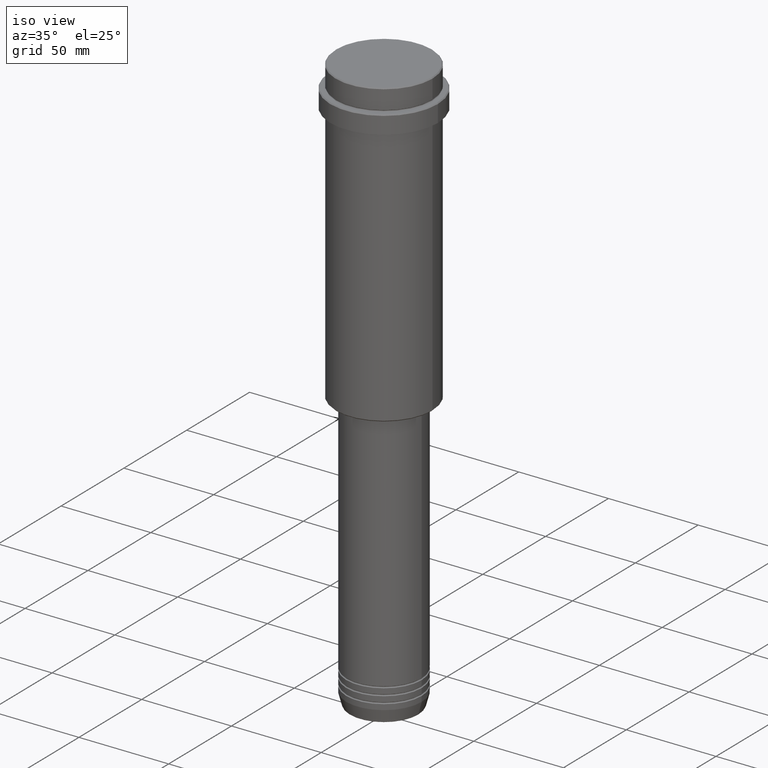
[diagram: clean part render]
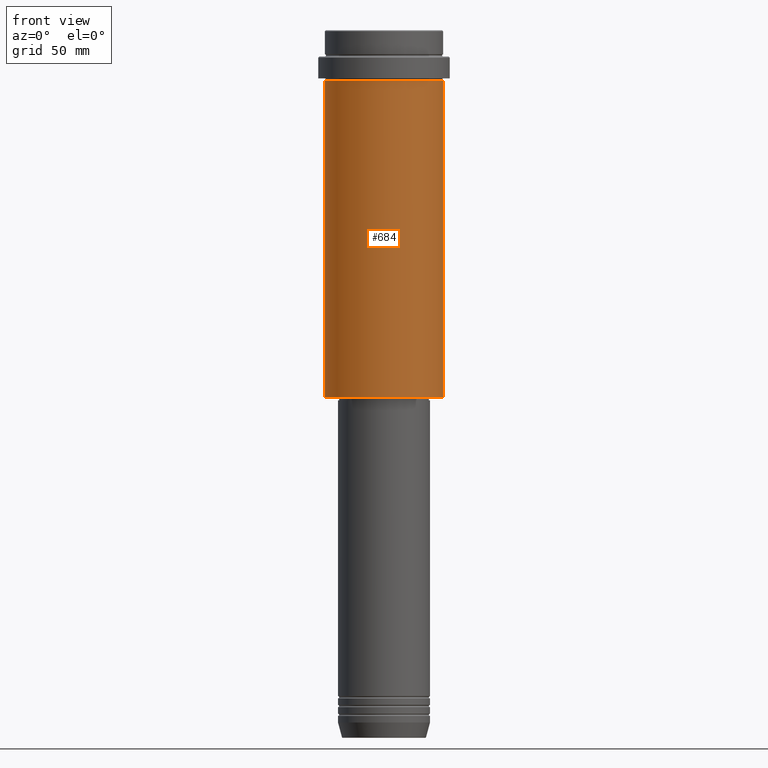
[diagram: tour spotlight — one face highlighted and labeled with its STEP entity id]
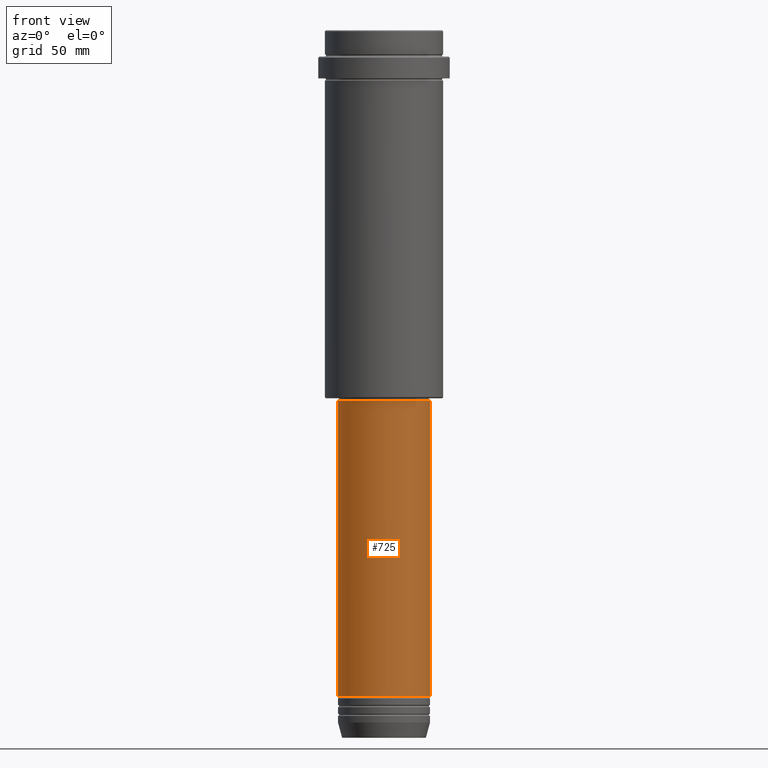
[diagram: tour spotlight — one face highlighted and labeled with its STEP entity id]
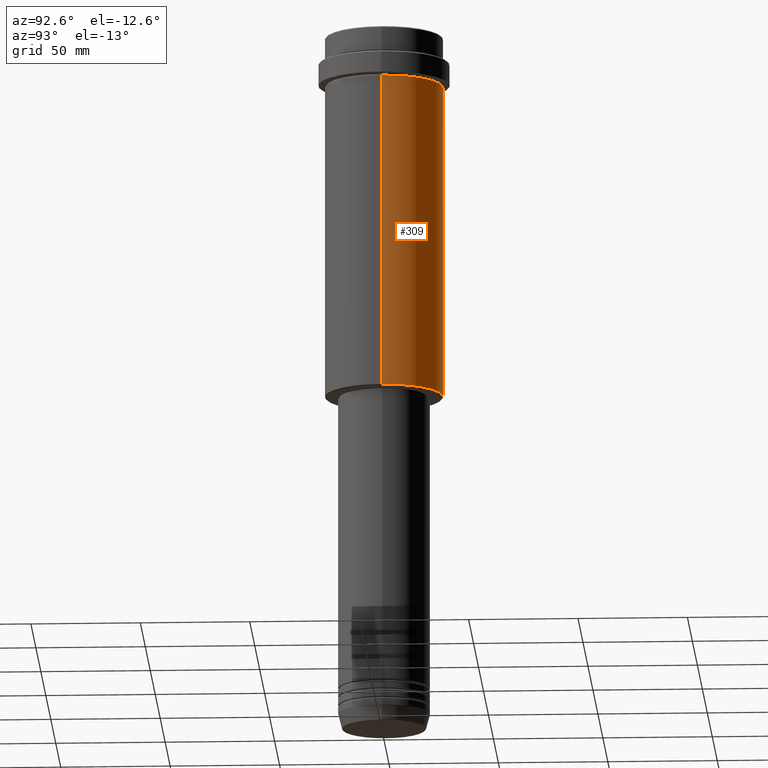
[diagram: tour spotlight — one face highlighted and labeled with its STEP entity id]
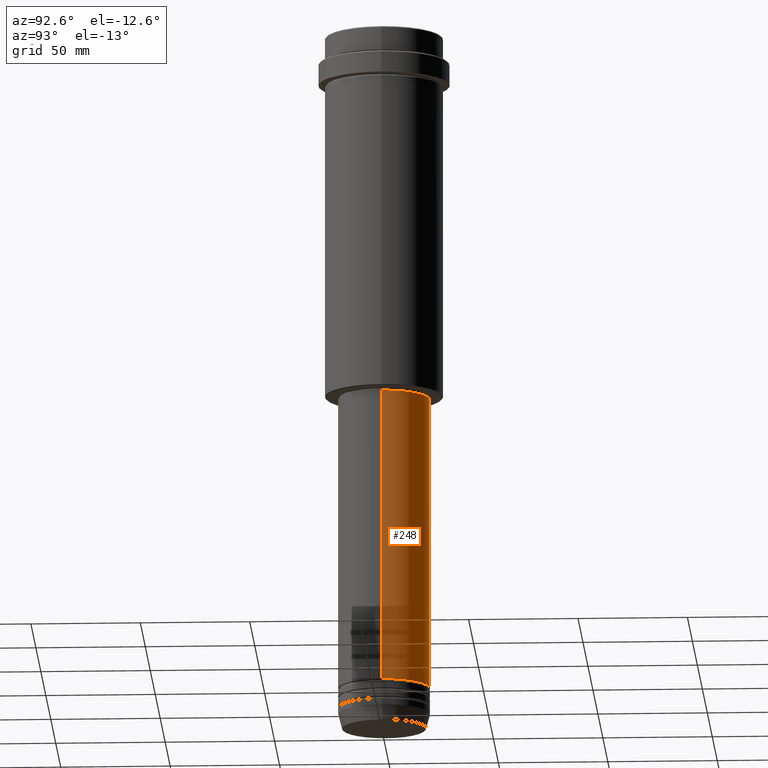
[diagram: tour spotlight — one face highlighted and labeled with its STEP entity id]
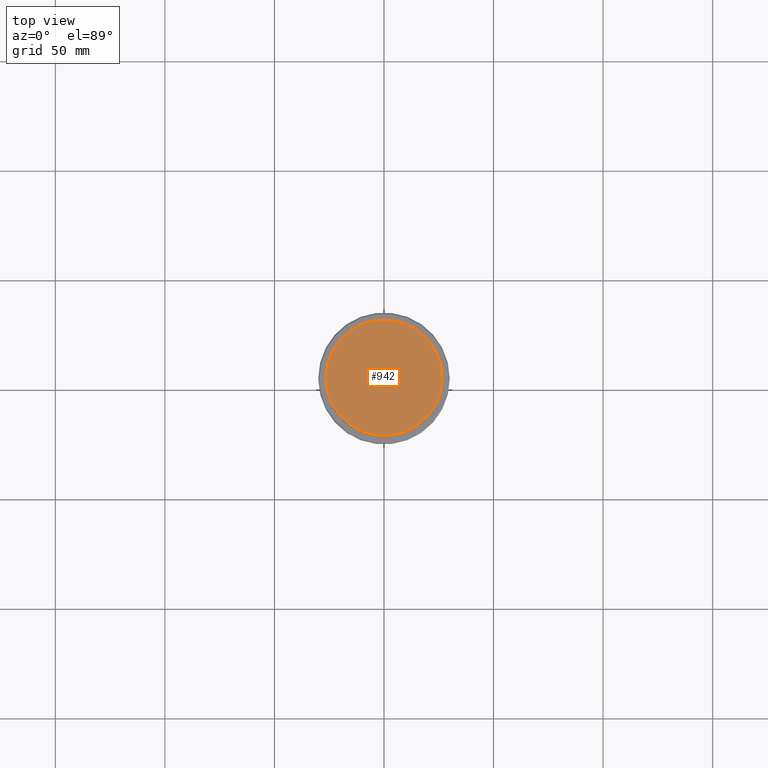
[diagram: tour spotlight — one face highlighted and labeled with its STEP entity id]
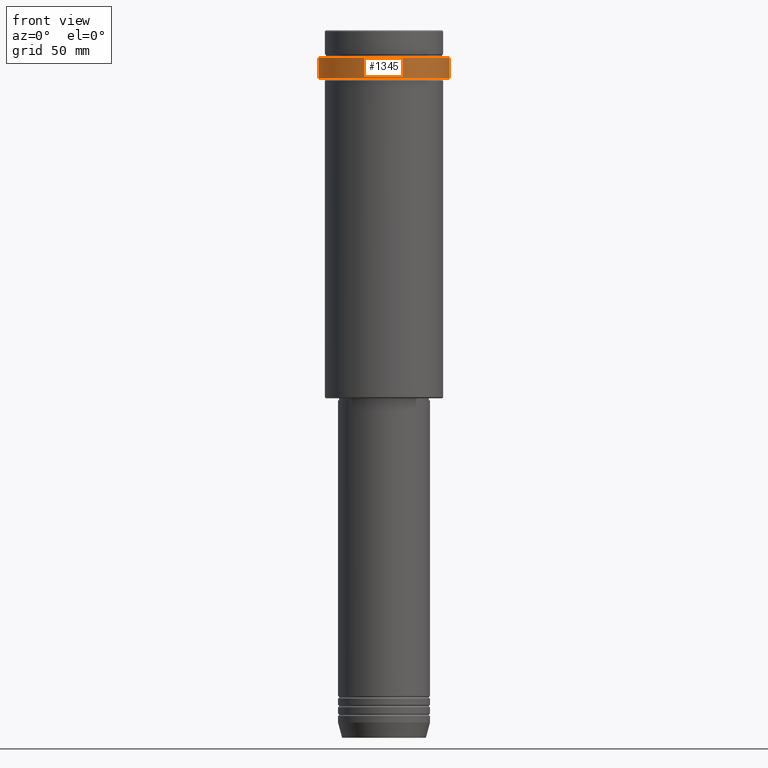
[diagram: tour spotlight — one face highlighted and labeled with its STEP entity id]
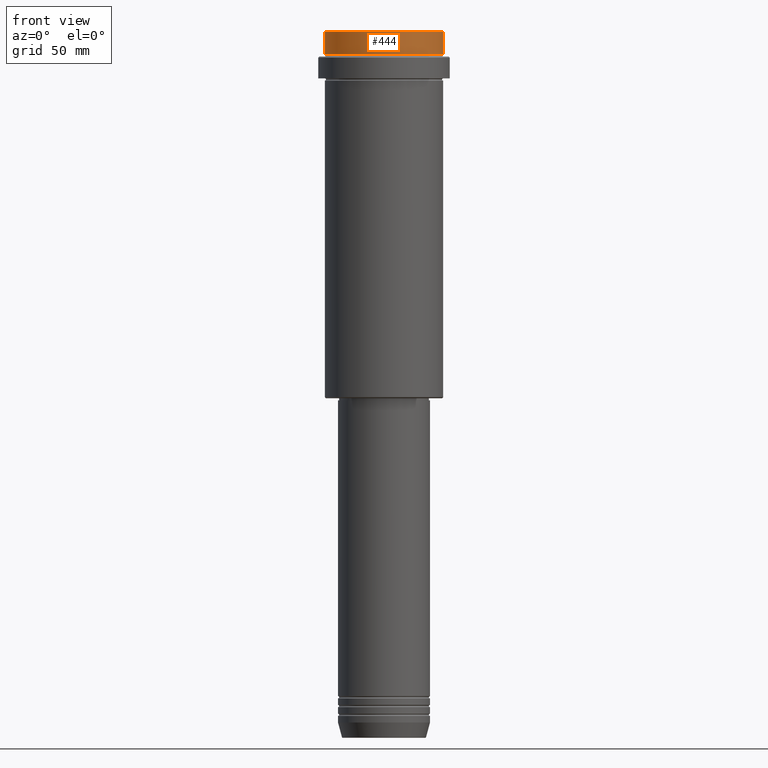
[diagram: tour spotlight — one face highlighted and labeled with its STEP entity id]
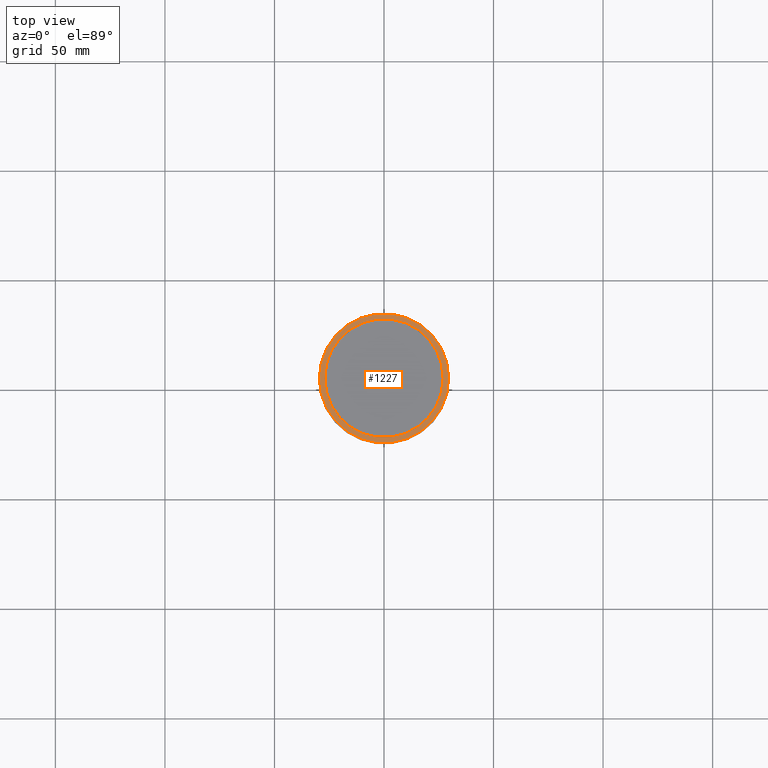
[diagram: tour spotlight — one face highlighted and labeled with its STEP entity id]
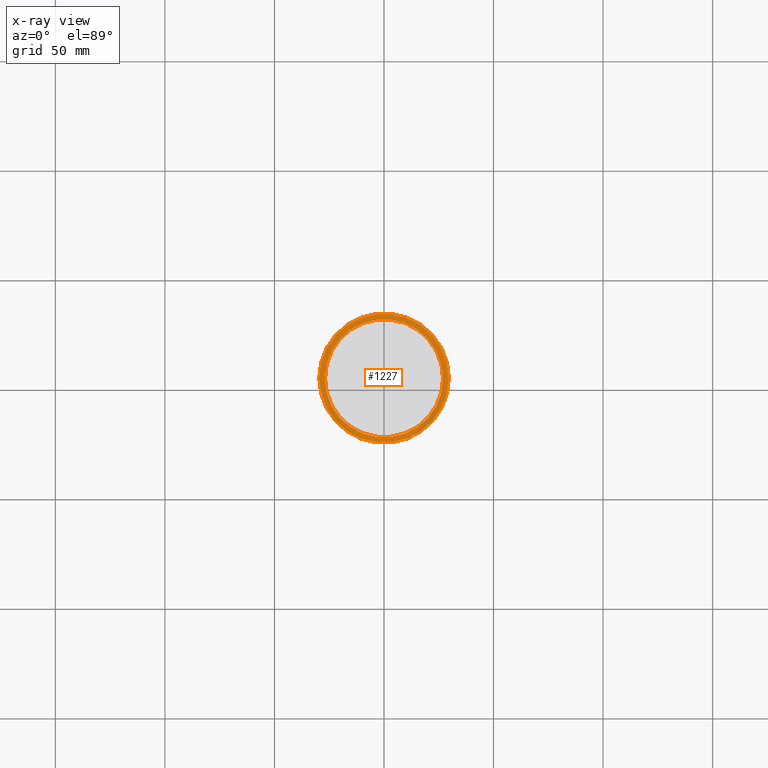
[diagram: x-ray of the same camera — body ghosted, this tour face saturated]
A machine part: a face-by-face anatomy tour. The part has 52 B-rep faces; the first image is the clean iso view, then the 8 largest visible faces are spotlighted one at a time (largest first), each with its STEP entity span.

Face 1 — front view, entity #684. In plain terms, the highlighted cylindrical surface (partial cylindrical patch) has radius 27 mm, axis along (-0, -0, 1).
Definition (entity closure, byte-faithful):
#84 = EDGE_CURVE ( 'NONE', #395, #1285, #538, .T. ) ;
#170 = CARTESIAN_POINT ( 'NONE',  ( 26.99999999999999645, 0.000000000000000000, 0.000000000000000000 ) ) ;
#187 = LINE ( 'NONE', #535, #859 ) ;
#193 = EDGE_LOOP ( 'NONE', ( #1368, #1355, #1031, #651 ) ) ;
#265 = DIRECTION ( 'NONE',  ( -0.000000000000000000, -0.000000000000000000, 1.000000000000000000 ) ) ;
#268 = CARTESIAN_POINT ( 'NONE',  ( 0.000000000000000000, 0.000000000000000000, 0.000000000000000000 ) ) ;
#395 = VERTEX_POINT ( 'NONE', #418 ) ;
#413 = CARTESIAN_POINT ( 'NONE',  ( -26.99999999999999645, 3.306546357697853339E-15, -23.00000000000000000 ) ) ;
#418 = CARTESIAN_POINT ( 'NONE',  ( 26.99999999999999645, 0.000000000000000000, -167.5000000000000284 ) ) ;
#460 = VERTEX_POINT ( 'NONE', #413 ) ;
#469 = VERTEX_POINT ( 'NONE', #682 ) ;
#489 = DIRECTION ( 'NONE',  ( -0.000000000000000000, -0.000000000000000000, 1.000000000000000000 ) ) ;
#490 = FACE_OUTER_BOUND ( 'NONE', #193, .T. ) ;
#506 = CIRCLE ( 'NONE', #1389, 26.99999999999999645 ) ;
#535 = CARTESIAN_POINT ( 'NONE',  ( -26.99999999999999645, 3.306546357697853339E-15, 0.000000000000000000 ) ) ;
#538 = LINE ( 'NONE', #170, #1222 ) ;
#600 = EDGE_CURVE ( 'NONE', #460, #1285, #905, .T. ) ;
#623 = DIRECTION ( 'NONE',  ( -0.000000000000000000, -0.000000000000000000, 1.000000000000000000 ) ) ;
#651 = ORIENTED_EDGE ( 'NONE', *, *, #600, .F. ) ;
#682 = CARTESIAN_POINT ( 'NONE',  ( -26.99999999999999645, 3.306546357697853339E-15, -167.5000000000000284 ) ) ;
#684 = ADVANCED_FACE ( 'NONE', ( #490 ), #1370, .T. ) ;
#771 = AXIS2_PLACEMENT_3D ( 'NONE', #268, #812, #1030 ) ;
#803 = DIRECTION ( 'NONE',  ( -1.000000000000000000, 0.000000000000000000, 0.000000000000000000 ) ) ;
#812 = DIRECTION ( 'NONE',  ( -0.000000000000000000, -0.000000000000000000, 1.000000000000000000 ) ) ;
#820 = CARTESIAN_POINT ( 'NONE',  ( 0.000000000000000000, 0.000000000000000000, -167.5000000000000284 ) ) ;
#859 = VECTOR ( 'NONE', #1376, 1000.000000000000000 ) ;
#905 = CIRCLE ( 'NONE', #980, 26.99999999999999645 ) ;
#926 = DIRECTION ( 'NONE',  ( 1.000000000000000000, 0.000000000000000000, 0.000000000000000000 ) ) ;
#980 = AXIS2_PLACEMENT_3D ( 'NONE', #1150, #265, #926 ) ;
#1030 = DIRECTION ( 'NONE',  ( 1.000000000000000000, 0.000000000000000000, 0.000000000000000000 ) ) ;
#1031 = ORIENTED_EDGE ( 'NONE', *, *, #84, .T. ) ;
#1041 = CARTESIAN_POINT ( 'NONE',  ( 26.99999999999999645, 0.000000000000000000, -23.00000000000000000 ) ) ;
#1150 = CARTESIAN_POINT ( 'NONE',  ( 0.000000000000000000, 0.000000000000000000, -23.00000000000000000 ) ) ;
#1222 = VECTOR ( 'NONE', #623, 1000.000000000000000 ) ;
#1271 = EDGE_CURVE ( 'NONE', #469, #395, #506, .T. ) ;
#1285 = VERTEX_POINT ( 'NONE', #1041 ) ;
#1355 = ORIENTED_EDGE ( 'NONE', *, *, #1271, .T. ) ;
#1368 = ORIENTED_EDGE ( 'NONE', *, *, #1372, .F. ) ;
#1370 = CYLINDRICAL_SURFACE ( 'NONE', #771, 26.99999999999999645 ) ;
#1372 = EDGE_CURVE ( 'NONE', #469, #460, #187, .T. ) ;
#1376 = DIRECTION ( 'NONE',  ( -0.000000000000000000, -0.000000000000000000, 1.000000000000000000 ) ) ;
#1389 = AXIS2_PLACEMENT_3D ( 'NONE', #820, #489, #803 ) ;

Face 2 — front view, entity #725. In plain terms, the highlighted cylindrical surface (partial cylindrical patch) has radius 21 mm, axis along (-0, -0, 1).
Definition (entity closure, byte-faithful):
#28 = CARTESIAN_POINT ( 'NONE',  ( -20.99999999999999645, 2.571758278209441267E-15, 0.000000000000000000 ) ) ;
#51 = CARTESIAN_POINT ( 'NONE',  ( 0.000000000000000000, 0.000000000000000000, 0.000000000000000000 ) ) ;
#100 = DIRECTION ( 'NONE',  ( 1.000000000000000000, 0.000000000000000000, 0.000000000000000000 ) ) ;
#128 = CIRCLE ( 'NONE', #1362, 20.99999999999999645 ) ;
#135 = CARTESIAN_POINT ( 'NONE',  ( 20.99999999999999645, 0.000000000000000000, -168.9999999999999147 ) ) ;
#175 = AXIS2_PLACEMENT_3D ( 'NONE', #51, #1354, #374 ) ;
#251 = ORIENTED_EDGE ( 'NONE', *, *, #784, .F. ) ;
#257 = CYLINDRICAL_SURFACE ( 'NONE', #175, 20.99999999999999645 ) ;
#274 = VERTEX_POINT ( 'NONE', #674 ) ;
#297 = ORIENTED_EDGE ( 'NONE', *, *, #899, .F. ) ;
#331 = VECTOR ( 'NONE', #915, 1000.000000000000000 ) ;
#359 = EDGE_CURVE ( 'NONE', #1179, #274, #770, .T. ) ;
#374 = DIRECTION ( 'NONE',  ( 1.000000000000000000, 0.000000000000000000, 0.000000000000000000 ) ) ;
#436 = VECTOR ( 'NONE', #596, 1000.000000000000000 ) ;
#466 = EDGE_LOOP ( 'NONE', ( #297, #1156, #1037, #251 ) ) ;
#582 = DIRECTION ( 'NONE',  ( -0.000000000000000000, -0.000000000000000000, 1.000000000000000000 ) ) ;
#596 = DIRECTION ( 'NONE',  ( -0.000000000000000000, -0.000000000000000000, 1.000000000000000000 ) ) ;
#674 = CARTESIAN_POINT ( 'NONE',  ( 21.00000000000000000, 0.000000000000000000, -303.9999999999998863 ) ) ;
#716 = EDGE_CURVE ( 'NONE', #274, #787, #804, .T. ) ;
#718 = CARTESIAN_POINT ( 'NONE',  ( 20.99999999999999645, 0.000000000000000000, 0.000000000000000000 ) ) ;
#725 = ADVANCED_FACE ( 'NONE', ( #1242 ), #257, .T. ) ;
#770 = CIRCLE ( 'NONE', #1133, 21.00000000000000000 ) ;
#784 = EDGE_CURVE ( 'NONE', #900, #787, #128, .T. ) ;
#787 = VERTEX_POINT ( 'NONE', #135 ) ;
#804 = LINE ( 'NONE', #718, #436 ) ;
#862 = CARTESIAN_POINT ( 'NONE',  ( 0.000000000000000000, 0.000000000000000000, -303.9999999999998863 ) ) ;
#894 = CARTESIAN_POINT ( 'NONE',  ( 0.000000000000000000, 0.000000000000000000, -168.9999999999999147 ) ) ;
#899 = EDGE_CURVE ( 'NONE', #1179, #900, #1124, .T. ) ;
#900 = VERTEX_POINT ( 'NONE', #1346 ) ;
#915 = DIRECTION ( 'NONE',  ( -0.000000000000000000, -0.000000000000000000, 1.000000000000000000 ) ) ;
#939 = CARTESIAN_POINT ( 'NONE',  ( -21.00000000000000000, 2.571758278209441661E-15, -303.9999999999998863 ) ) ;
#1037 = ORIENTED_EDGE ( 'NONE', *, *, #716, .T. ) ;
#1124 = LINE ( 'NONE', #28, #331 ) ;
#1133 = AXIS2_PLACEMENT_3D ( 'NONE', #862, #1284, #100 ) ;
#1156 = ORIENTED_EDGE ( 'NONE', *, *, #359, .T. ) ;
#1179 = VERTEX_POINT ( 'NONE', #939 ) ;
#1242 = FACE_OUTER_BOUND ( 'NONE', #466, .T. ) ;
#1284 = DIRECTION ( 'NONE',  ( -0.000000000000000000, -0.000000000000000000, 1.000000000000000000 ) ) ;
#1317 = DIRECTION ( 'NONE',  ( 1.000000000000000000, 0.000000000000000000, 0.000000000000000000 ) ) ;
#1346 = CARTESIAN_POINT ( 'NONE',  ( -20.99999999999999645, 2.571758278209441267E-15, -168.9999999999999147 ) ) ;
#1354 = DIRECTION ( 'NONE',  ( -0.000000000000000000, -0.000000000000000000, 1.000000000000000000 ) ) ;
#1362 = AXIS2_PLACEMENT_3D ( 'NONE', #894, #582, #1317 ) ;

Face 3 — auxiliary view, entity #309. In plain terms, the highlighted cylindrical surface (partial cylindrical patch) has radius 27 mm, axis along (-0, -0, 1).
Definition (entity closure, byte-faithful):
#42 = DIRECTION ( 'NONE',  ( -0.000000000000000000, -0.000000000000000000, 1.000000000000000000 ) ) ;
#84 = EDGE_CURVE ( 'NONE', #395, #1285, #538, .T. ) ;
#91 = AXIS2_PLACEMENT_3D ( 'NONE', #138, #42, #842 ) ;
#138 = CARTESIAN_POINT ( 'NONE',  ( 0.000000000000000000, 0.000000000000000000, -167.5000000000000284 ) ) ;
#145 = FACE_OUTER_BOUND ( 'NONE', #707, .T. ) ;
#170 = CARTESIAN_POINT ( 'NONE',  ( 26.99999999999999645, 0.000000000000000000, 0.000000000000000000 ) ) ;
#187 = LINE ( 'NONE', #535, #859 ) ;
#253 = DIRECTION ( 'NONE',  ( -0.000000000000000000, -0.000000000000000000, 1.000000000000000000 ) ) ;
#262 = CIRCLE ( 'NONE', #330, 26.99999999999999645 ) ;
#309 = ADVANCED_FACE ( 'NONE', ( #145 ), #581, .T. ) ;
#330 = AXIS2_PLACEMENT_3D ( 'NONE', #519, #253, #696 ) ;
#364 = CARTESIAN_POINT ( 'NONE',  ( 0.000000000000000000, 0.000000000000000000, 0.000000000000000000 ) ) ;
#395 = VERTEX_POINT ( 'NONE', #418 ) ;
#413 = CARTESIAN_POINT ( 'NONE',  ( -26.99999999999999645, 3.306546357697853339E-15, -23.00000000000000000 ) ) ;
#418 = CARTESIAN_POINT ( 'NONE',  ( 26.99999999999999645, 0.000000000000000000, -167.5000000000000284 ) ) ;
#460 = VERTEX_POINT ( 'NONE', #413 ) ;
#469 = VERTEX_POINT ( 'NONE', #682 ) ;
#482 = DIRECTION ( 'NONE',  ( -0.000000000000000000, -0.000000000000000000, 1.000000000000000000 ) ) ;
#519 = CARTESIAN_POINT ( 'NONE',  ( 0.000000000000000000, 0.000000000000000000, -23.00000000000000000 ) ) ;
#528 = ORIENTED_EDGE ( 'NONE', *, *, #1151, .T. ) ;
#532 = EDGE_CURVE ( 'NONE', #1285, #460, #262, .T. ) ;
#535 = CARTESIAN_POINT ( 'NONE',  ( -26.99999999999999645, 3.306546357697853339E-15, 0.000000000000000000 ) ) ;
#538 = LINE ( 'NONE', #170, #1222 ) ;
#581 = CYLINDRICAL_SURFACE ( 'NONE', #1075, 26.99999999999999645 ) ;
#623 = DIRECTION ( 'NONE',  ( -0.000000000000000000, -0.000000000000000000, 1.000000000000000000 ) ) ;
#640 = CIRCLE ( 'NONE', #91, 26.99999999999999645 ) ;
#682 = CARTESIAN_POINT ( 'NONE',  ( -26.99999999999999645, 3.306546357697853339E-15, -167.5000000000000284 ) ) ;
#696 = DIRECTION ( 'NONE',  ( 1.000000000000000000, 0.000000000000000000, 0.000000000000000000 ) ) ;
#707 = EDGE_LOOP ( 'NONE', ( #528, #925, #1130, #1254 ) ) ;
#801 = DIRECTION ( 'NONE',  ( 1.000000000000000000, 0.000000000000000000, 0.000000000000000000 ) ) ;
#842 = DIRECTION ( 'NONE',  ( -1.000000000000000000, 0.000000000000000000, 0.000000000000000000 ) ) ;
#859 = VECTOR ( 'NONE', #1376, 1000.000000000000000 ) ;
#925 = ORIENTED_EDGE ( 'NONE', *, *, #1372, .T. ) ;
#1041 = CARTESIAN_POINT ( 'NONE',  ( 26.99999999999999645, 0.000000000000000000, -23.00000000000000000 ) ) ;
#1075 = AXIS2_PLACEMENT_3D ( 'NONE', #364, #482, #801 ) ;
#1130 = ORIENTED_EDGE ( 'NONE', *, *, #532, .F. ) ;
#1151 = EDGE_CURVE ( 'NONE', #395, #469, #640, .T. ) ;
#1222 = VECTOR ( 'NONE', #623, 1000.000000000000000 ) ;
#1254 = ORIENTED_EDGE ( 'NONE', *, *, #84, .F. ) ;
#1285 = VERTEX_POINT ( 'NONE', #1041 ) ;
#1372 = EDGE_CURVE ( 'NONE', #469, #460, #187, .T. ) ;
#1376 = DIRECTION ( 'NONE',  ( -0.000000000000000000, -0.000000000000000000, 1.000000000000000000 ) ) ;

Face 4 — auxiliary view, entity #248. In plain terms, the highlighted cylindrical surface (partial cylindrical patch) has radius 21 mm, axis along (-0, -0, 1).
Definition (entity closure, byte-faithful):
#1 = DIRECTION ( 'NONE',  ( -0.000000000000000000, -0.000000000000000000, 1.000000000000000000 ) ) ;
#22 = EDGE_LOOP ( 'NONE', ( #814, #1210, #238, #1406 ) ) ;
#28 = CARTESIAN_POINT ( 'NONE',  ( -20.99999999999999645, 2.571758278209441267E-15, 0.000000000000000000 ) ) ;
#120 = DIRECTION ( 'NONE',  ( 1.000000000000000000, 0.000000000000000000, 0.000000000000000000 ) ) ;
#135 = CARTESIAN_POINT ( 'NONE',  ( 20.99999999999999645, 0.000000000000000000, -168.9999999999999147 ) ) ;
#215 = EDGE_CURVE ( 'NONE', #787, #900, #1310, .T. ) ;
#238 = ORIENTED_EDGE ( 'NONE', *, *, #215, .F. ) ;
#248 = ADVANCED_FACE ( 'NONE', ( #1170 ), #316, .T. ) ;
#274 = VERTEX_POINT ( 'NONE', #674 ) ;
#316 = CYLINDRICAL_SURFACE ( 'NONE', #955, 20.99999999999999645 ) ;
#322 = DIRECTION ( 'NONE',  ( 1.000000000000000000, 0.000000000000000000, 0.000000000000000000 ) ) ;
#325 = AXIS2_PLACEMENT_3D ( 'NONE', #761, #970, #322 ) ;
#331 = VECTOR ( 'NONE', #915, 1000.000000000000000 ) ;
#366 = EDGE_CURVE ( 'NONE', #274, #1179, #902, .T. ) ;
#436 = VECTOR ( 'NONE', #596, 1000.000000000000000 ) ;
#596 = DIRECTION ( 'NONE',  ( -0.000000000000000000, -0.000000000000000000, 1.000000000000000000 ) ) ;
#641 = CARTESIAN_POINT ( 'NONE',  ( 0.000000000000000000, 0.000000000000000000, -168.9999999999999147 ) ) ;
#661 = CARTESIAN_POINT ( 'NONE',  ( 0.000000000000000000, 0.000000000000000000, 0.000000000000000000 ) ) ;
#674 = CARTESIAN_POINT ( 'NONE',  ( 21.00000000000000000, 0.000000000000000000, -303.9999999999998863 ) ) ;
#698 = AXIS2_PLACEMENT_3D ( 'NONE', #641, #1407, #1072 ) ;
#716 = EDGE_CURVE ( 'NONE', #274, #787, #804, .T. ) ;
#718 = CARTESIAN_POINT ( 'NONE',  ( 20.99999999999999645, 0.000000000000000000, 0.000000000000000000 ) ) ;
#761 = CARTESIAN_POINT ( 'NONE',  ( 0.000000000000000000, 0.000000000000000000, -303.9999999999998863 ) ) ;
#787 = VERTEX_POINT ( 'NONE', #135 ) ;
#804 = LINE ( 'NONE', #718, #436 ) ;
#814 = ORIENTED_EDGE ( 'NONE', *, *, #366, .T. ) ;
#899 = EDGE_CURVE ( 'NONE', #1179, #900, #1124, .T. ) ;
#900 = VERTEX_POINT ( 'NONE', #1346 ) ;
#902 = CIRCLE ( 'NONE', #325, 21.00000000000000000 ) ;
#915 = DIRECTION ( 'NONE',  ( -0.000000000000000000, -0.000000000000000000, 1.000000000000000000 ) ) ;
#939 = CARTESIAN_POINT ( 'NONE',  ( -21.00000000000000000, 2.571758278209441661E-15, -303.9999999999998863 ) ) ;
#955 = AXIS2_PLACEMENT_3D ( 'NONE', #661, #1, #120 ) ;
#970 = DIRECTION ( 'NONE',  ( -0.000000000000000000, -0.000000000000000000, 1.000000000000000000 ) ) ;
#1072 = DIRECTION ( 'NONE',  ( 1.000000000000000000, 0.000000000000000000, 0.000000000000000000 ) ) ;
#1124 = LINE ( 'NONE', #28, #331 ) ;
#1170 = FACE_OUTER_BOUND ( 'NONE', #22, .T. ) ;
#1179 = VERTEX_POINT ( 'NONE', #939 ) ;
#1210 = ORIENTED_EDGE ( 'NONE', *, *, #899, .T. ) ;
#1310 = CIRCLE ( 'NONE', #698, 20.99999999999999645 ) ;
#1346 = CARTESIAN_POINT ( 'NONE',  ( -20.99999999999999645, 2.571758278209441267E-15, -168.9999999999999147 ) ) ;
#1406 = ORIENTED_EDGE ( 'NONE', *, *, #716, .F. ) ;
#1407 = DIRECTION ( 'NONE',  ( -0.000000000000000000, -0.000000000000000000, 1.000000000000000000 ) ) ;

Face 5 — top view, entity #942. In plain terms, the highlighted planar face has unit normal (0, -0, 1).
Definition (entity closure, byte-faithful):
#73 = ORIENTED_EDGE ( 'NONE', *, *, #823, .T. ) ;
#81 = DIRECTION ( 'NONE',  ( 0.000000000000000000, -0.000000000000000000, 1.000000000000000000 ) ) ;
#118 = ORIENTED_EDGE ( 'NONE', *, *, #329, .T. ) ;
#127 = CIRCLE ( 'NONE', #1024, 26.50000000000002487 ) ;
#141 = DIRECTION ( 'NONE',  ( 1.000000000000000000, 0.000000000000000000, 0.000000000000000000 ) ) ;
#150 = VERTEX_POINT ( 'NONE', #1106 ) ;
#329 = EDGE_CURVE ( 'NONE', #420, #150, #127, .T. ) ;
#416 = DIRECTION ( 'NONE',  ( 1.000000000000000000, 0.000000000000000000, 0.000000000000000000 ) ) ;
#420 = VERTEX_POINT ( 'NONE', #607 ) ;
#552 = CARTESIAN_POINT ( 'NONE',  ( 0.000000000000000000, 0.000000000000000000, 0.000000000000000000 ) ) ;
#563 = DIRECTION ( 'NONE',  ( -0.000000000000000000, -0.000000000000000000, 1.000000000000000000 ) ) ;
#590 = AXIS2_PLACEMENT_3D ( 'NONE', #1010, #563, #141 ) ;
#607 = CARTESIAN_POINT ( 'NONE',  ( -26.50000000000002487, 0.000000000000000000, 0.000000000000000000 ) ) ;
#759 = PLANE ( 'NONE',  #1295 ) ;
#823 = EDGE_CURVE ( 'NONE', #150, #420, #1413, .T. ) ;
#942 = ADVANCED_FACE ( 'NONE', ( #1171 ), #759, .T. ) ;
#984 = DIRECTION ( 'NONE',  ( -0.000000000000000000, -0.000000000000000000, 1.000000000000000000 ) ) ;
#1010 = CARTESIAN_POINT ( 'NONE',  ( 0.000000000000000000, 0.000000000000000000, 0.000000000000000000 ) ) ;
#1024 = AXIS2_PLACEMENT_3D ( 'NONE', #552, #984, #1398 ) ;
#1067 = EDGE_LOOP ( 'NONE', ( #118, #73 ) ) ;
#1106 = CARTESIAN_POINT ( 'NONE',  ( 26.50000000000002487, 3.275930187719171130E-15, 0.000000000000000000 ) ) ;
#1171 = FACE_OUTER_BOUND ( 'NONE', #1067, .T. ) ;
#1190 = CARTESIAN_POINT ( 'NONE',  ( 0.000000000000000000, 0.000000000000000000, 0.000000000000000000 ) ) ;
#1295 = AXIS2_PLACEMENT_3D ( 'NONE', #1190, #81, #416 ) ;
#1398 = DIRECTION ( 'NONE',  ( 1.000000000000000000, 0.000000000000000000, 0.000000000000000000 ) ) ;
#1413 = CIRCLE ( 'NONE', #590, 26.50000000000002487 ) ;

Face 6 — front view, entity #1345. In plain terms, the highlighted cylindrical surface (partial cylindrical patch) has radius 30 mm, axis along (-0, -0, 1).
Definition (entity closure, byte-faithful):
#57 = DIRECTION ( 'NONE',  ( 0.000000000000000000, 0.000000000000000000, -1.000000000000000000 ) ) ;
#139 = ORIENTED_EDGE ( 'NONE', *, *, #556, .F. ) ;
#219 = AXIS2_PLACEMENT_3D ( 'NONE', #439, #632, #522 ) ;
#241 = ORIENTED_EDGE ( 'NONE', *, *, #1068, .T. ) ;
#263 = AXIS2_PLACEMENT_3D ( 'NONE', #276, #1379, #1238 ) ;
#276 = CARTESIAN_POINT ( 'NONE',  ( 0.000000000000000000, 0.000000000000000000, -22.00000000000000355 ) ) ;
#410 = EDGE_CURVE ( 'NONE', #872, #800, #786, .T. ) ;
#439 = CARTESIAN_POINT ( 'NONE',  ( 0.000000000000000000, 0.000000000000000000, 0.000000000000000000 ) ) ;
#472 = AXIS2_PLACEMENT_3D ( 'NONE', #946, #57, #1374 ) ;
#522 = DIRECTION ( 'NONE',  ( 1.000000000000000000, 0.000000000000000000, 0.000000000000000000 ) ) ;
#541 = CARTESIAN_POINT ( 'NONE',  ( -29.99999999999999645, 3.673940397442058389E-15, -22.00000000000000355 ) ) ;
#556 = EDGE_CURVE ( 'NONE', #1358, #800, #1305, .T. ) ;
#559 = ORIENTED_EDGE ( 'NONE', *, *, #1101, .T. ) ;
#568 = DIRECTION ( 'NONE',  ( -0.000000000000000000, -0.000000000000000000, 1.000000000000000000 ) ) ;
#569 = CIRCLE ( 'NONE', #263, 29.99999999999999645 ) ;
#588 = VECTOR ( 'NONE', #1016, 1000.000000000000000 ) ;
#632 = DIRECTION ( 'NONE',  ( -0.000000000000000000, -0.000000000000000000, 1.000000000000000000 ) ) ;
#724 = CARTESIAN_POINT ( 'NONE',  ( 29.99999999999999645, 0.000000000000000000, -22.00000000000000355 ) ) ;
#751 = EDGE_LOOP ( 'NONE', ( #139, #241, #559, #764 ) ) ;
#764 = ORIENTED_EDGE ( 'NONE', *, *, #410, .T. ) ;
#786 = CIRCLE ( 'NONE', #472, 30.00000000000000000 ) ;
#800 = VERTEX_POINT ( 'NONE', #1231 ) ;
#872 = VERTEX_POINT ( 'NONE', #1176 ) ;
#892 = CARTESIAN_POINT ( 'NONE',  ( -30.00000000000000000, 3.673940397442059178E-15, 0.000000000000000000 ) ) ;
#914 = LINE ( 'NONE', #1018, #982 ) ;
#946 = CARTESIAN_POINT ( 'NONE',  ( 0.000000000000000000, 0.000000000000000000, -12.49999999999998224 ) ) ;
#982 = VECTOR ( 'NONE', #568, 1000.000000000000000 ) ;
#995 = VERTEX_POINT ( 'NONE', #724 ) ;
#1016 = DIRECTION ( 'NONE',  ( -0.000000000000000000, -0.000000000000000000, 1.000000000000000000 ) ) ;
#1018 = CARTESIAN_POINT ( 'NONE',  ( 30.00000000000000000, 0.000000000000000000, 0.000000000000000000 ) ) ;
#1061 = CYLINDRICAL_SURFACE ( 'NONE', #219, 30.00000000000000000 ) ;
#1068 = EDGE_CURVE ( 'NONE', #1358, #995, #569, .T. ) ;
#1101 = EDGE_CURVE ( 'NONE', #995, #872, #914, .T. ) ;
#1176 = CARTESIAN_POINT ( 'NONE',  ( 30.00000000000000000, 0.000000000000000000, -12.49999999999998224 ) ) ;
#1183 = FACE_OUTER_BOUND ( 'NONE', #751, .T. ) ;
#1231 = CARTESIAN_POINT ( 'NONE',  ( -30.00000000000000000, 3.673940397442059178E-15, -12.49999999999998224 ) ) ;
#1238 = DIRECTION ( 'NONE',  ( 1.000000000000000000, 0.000000000000000000, 0.000000000000000000 ) ) ;
#1305 = LINE ( 'NONE', #892, #588 ) ;
#1345 = ADVANCED_FACE ( 'NONE', ( #1183 ), #1061, .T. ) ;
#1358 = VERTEX_POINT ( 'NONE', #541 ) ;
#1374 = DIRECTION ( 'NONE',  ( 1.000000000000000000, 0.000000000000000000, 0.000000000000000000 ) ) ;
#1379 = DIRECTION ( 'NONE',  ( -0.000000000000000000, -0.000000000000000000, 1.000000000000000000 ) ) ;

Face 7 — front view, entity #444. In plain terms, the highlighted cylindrical surface (partial cylindrical patch) has radius 27 mm, axis along (-0, -0, 1).
Definition (entity closure, byte-faithful):
#49 = FACE_OUTER_BOUND ( 'NONE', #1045, .T. ) ;
#77 = ORIENTED_EDGE ( 'NONE', *, *, #142, .T. ) ;
#80 = DIRECTION ( 'NONE',  ( -0.000000000000000000, -0.000000000000000000, 1.000000000000000000 ) ) ;
#142 = EDGE_CURVE ( 'NONE', #843, #246, #149, .T. ) ;
#149 = CIRCLE ( 'NONE', #1308, 26.99999999999999645 ) ;
#157 = DIRECTION ( 'NONE',  ( 1.000000000000000000, 0.000000000000000000, 0.000000000000000000 ) ) ;
#186 = CARTESIAN_POINT ( 'NONE',  ( 0.000000000000000000, 0.000000000000000000, 0.000000000000000000 ) ) ;
#203 = ORIENTED_EDGE ( 'NONE', *, *, #339, .T. ) ;
#233 = CARTESIAN_POINT ( 'NONE',  ( -26.99999999999999645, 3.306546357697853339E-15, -11.00000000000000178 ) ) ;
#246 = VERTEX_POINT ( 'NONE', #293 ) ;
#260 = EDGE_CURVE ( 'NONE', #843, #816, #342, .T. ) ;
#293 = CARTESIAN_POINT ( 'NONE',  ( 26.99999999999999645, 0.000000000000000000, -11.00000000000000178 ) ) ;
#339 = EDGE_CURVE ( 'NONE', #246, #405, #978, .T. ) ;
#342 = LINE ( 'NONE', #451, #407 ) ;
#398 = ORIENTED_EDGE ( 'NONE', *, *, #260, .F. ) ;
#405 = VERTEX_POINT ( 'NONE', #818 ) ;
#407 = VECTOR ( 'NONE', #1218, 1000.000000000000000 ) ;
#427 = CARTESIAN_POINT ( 'NONE',  ( 26.99999999999999645, 0.000000000000000000, 0.000000000000000000 ) ) ;
#444 = ADVANCED_FACE ( 'NONE', ( #49 ), #1169, .T. ) ;
#451 = CARTESIAN_POINT ( 'NONE',  ( -26.99999999999999645, 3.306546357697853339E-15, 0.000000000000000000 ) ) ;
#456 = DIRECTION ( 'NONE',  ( 1.000000000000000000, 0.000000000000000000, 0.000000000000000000 ) ) ;
#500 = AXIS2_PLACEMENT_3D ( 'NONE', #186, #80, #1249 ) ;
#575 = DIRECTION ( 'NONE',  ( -0.000000000000000000, -0.000000000000000000, 1.000000000000000000 ) ) ;
#689 = ORIENTED_EDGE ( 'NONE', *, *, #1123, .T. ) ;
#699 = DIRECTION ( 'NONE',  ( 0.000000000000000000, 0.000000000000000000, -1.000000000000000000 ) ) ;
#793 = AXIS2_PLACEMENT_3D ( 'NONE', #1003, #699, #157 ) ;
#816 = VERTEX_POINT ( 'NONE', #1122 ) ;
#818 = CARTESIAN_POINT ( 'NONE',  ( 26.99999999999999645, 0.000000000000000000, -0.5000000000000038858 ) ) ;
#843 = VERTEX_POINT ( 'NONE', #233 ) ;
#867 = DIRECTION ( 'NONE',  ( -0.000000000000000000, -0.000000000000000000, 1.000000000000000000 ) ) ;
#978 = LINE ( 'NONE', #427, #1383 ) ;
#1003 = CARTESIAN_POINT ( 'NONE',  ( 0.000000000000000000, 0.000000000000000000, -0.5000000000000038858 ) ) ;
#1045 = EDGE_LOOP ( 'NONE', ( #398, #77, #203, #689 ) ) ;
#1122 = CARTESIAN_POINT ( 'NONE',  ( -26.99999999999999645, 3.306546357697853339E-15, -0.5000000000000038858 ) ) ;
#1123 = EDGE_CURVE ( 'NONE', #405, #816, #1315, .T. ) ;
#1169 = CYLINDRICAL_SURFACE ( 'NONE', #500, 26.99999999999999645 ) ;
#1214 = CARTESIAN_POINT ( 'NONE',  ( 0.000000000000000000, 0.000000000000000000, -11.00000000000000178 ) ) ;
#1218 = DIRECTION ( 'NONE',  ( -0.000000000000000000, -0.000000000000000000, 1.000000000000000000 ) ) ;
#1249 = DIRECTION ( 'NONE',  ( 1.000000000000000000, 0.000000000000000000, 0.000000000000000000 ) ) ;
#1308 = AXIS2_PLACEMENT_3D ( 'NONE', #1214, #575, #456 ) ;
#1315 = CIRCLE ( 'NONE', #793, 26.99999999999999645 ) ;
#1383 = VECTOR ( 'NONE', #867, 1000.000000000000000 ) ;

Face 8 — top view, entity #1227. An x-ray twin of the same camera follows (body ghosted, this face saturated) — the face is partly hidden behind the body. In plain terms, the highlighted planar face has unit normal (0, -0, 1).
Definition (entity closure, byte-faithful):
#94 = DIRECTION ( 'NONE',  ( 1.000000000000000000, 0.000000000000000000, 0.000000000000000000 ) ) ;
#97 = DIRECTION ( 'NONE',  ( 1.000000000000000000, 0.000000000000000000, 0.000000000000000000 ) ) ;
#132 = CARTESIAN_POINT ( 'NONE',  ( -26.99999999999999289, 3.306546357697852944E-15, -12.00000000000000178 ) ) ;
#178 = EDGE_CURVE ( 'NONE', #275, #225, #258, .T. ) ;
#198 = DIRECTION ( 'NONE',  ( -0.000000000000000000, -0.000000000000000000, 1.000000000000000000 ) ) ;
#225 = VERTEX_POINT ( 'NONE', #962 ) ;
#258 = CIRCLE ( 'NONE', #634, 26.99999999999999289 ) ;
#272 = DIRECTION ( 'NONE',  ( 1.000000000000000000, 0.000000000000000000, 0.000000000000000000 ) ) ;
#273 = ORIENTED_EDGE ( 'NONE', *, *, #705, .T. ) ;
#275 = VERTEX_POINT ( 'NONE', #132 ) ;
#290 = CARTESIAN_POINT ( 'NONE',  ( 0.000000000000000000, 0.000000000000000000, -12.00000000000000178 ) ) ;
#333 = CIRCLE ( 'NONE', #679, 26.99999999999999289 ) ;
#334 = ORIENTED_EDGE ( 'NONE', *, *, #1306, .T. ) ;
#361 = DIRECTION ( 'NONE',  ( 0.000000000000000000, -0.000000000000000000, 1.000000000000000000 ) ) ;
#367 = PLANE ( 'NONE',  #999 ) ;
#450 = ORIENTED_EDGE ( 'NONE', *, *, #1033, .T. ) ;
#507 = CARTESIAN_POINT ( 'NONE',  ( 0.000000000000000000, 0.000000000000000000, -12.00000000000000178 ) ) ;
#530 = AXIS2_PLACEMENT_3D ( 'NONE', #826, #1035, #1365 ) ;
#544 = VERTEX_POINT ( 'NONE', #1215 ) ;
#634 = AXIS2_PLACEMENT_3D ( 'NONE', #870, #774, #896 ) ;
#679 = AXIS2_PLACEMENT_3D ( 'NONE', #507, #1195, #97 ) ;
#683 = EDGE_LOOP ( 'NONE', ( #450, #273 ) ) ;
#705 = EDGE_CURVE ( 'NONE', #1166, #544, #1412, .T. ) ;
#774 = DIRECTION ( 'NONE',  ( 0.000000000000000000, 0.000000000000000000, -1.000000000000000000 ) ) ;
#798 = FACE_BOUND ( 'NONE', #1262, .T. ) ;
#813 = AXIS2_PLACEMENT_3D ( 'NONE', #290, #198, #94 ) ;
#826 = CARTESIAN_POINT ( 'NONE',  ( 0.000000000000000000, 0.000000000000000000, -12.00000000000000178 ) ) ;
#845 = CARTESIAN_POINT ( 'NONE',  ( 29.50000000000002487, 3.643324227463376968E-15, -12.00000000000000178 ) ) ;
#870 = CARTESIAN_POINT ( 'NONE',  ( 0.000000000000000000, 0.000000000000000000, -12.00000000000000178 ) ) ;
#876 = CIRCLE ( 'NONE', #813, 29.50000000000002487 ) ;
#877 = ORIENTED_EDGE ( 'NONE', *, *, #178, .T. ) ;
#896 = DIRECTION ( 'NONE',  ( 1.000000000000000000, 0.000000000000000000, 0.000000000000000000 ) ) ;
#962 = CARTESIAN_POINT ( 'NONE',  ( 26.99999999999999289, 0.000000000000000000, -12.00000000000000178 ) ) ;
#999 = AXIS2_PLACEMENT_3D ( 'NONE', #1019, #361, #272 ) ;
#1019 = CARTESIAN_POINT ( 'NONE',  ( 0.000000000000000000, 26.49999999999999645, -12.00000000000000178 ) ) ;
#1029 = FACE_OUTER_BOUND ( 'NONE', #683, .T. ) ;
#1033 = EDGE_CURVE ( 'NONE', #544, #1166, #876, .T. ) ;
#1035 = DIRECTION ( 'NONE',  ( -0.000000000000000000, -0.000000000000000000, 1.000000000000000000 ) ) ;
#1166 = VERTEX_POINT ( 'NONE', #845 ) ;
#1195 = DIRECTION ( 'NONE',  ( 0.000000000000000000, 0.000000000000000000, -1.000000000000000000 ) ) ;
#1215 = CARTESIAN_POINT ( 'NONE',  ( -29.50000000000002487, 0.000000000000000000, -12.00000000000000178 ) ) ;
#1227 = ADVANCED_FACE ( 'NONE', ( #1029, #798 ), #367, .T. ) ;
#1262 = EDGE_LOOP ( 'NONE', ( #334, #877 ) ) ;
#1306 = EDGE_CURVE ( 'NONE', #225, #275, #333, .T. ) ;
#1365 = DIRECTION ( 'NONE',  ( 1.000000000000000000, 0.000000000000000000, 0.000000000000000000 ) ) ;
#1412 = CIRCLE ( 'NONE', #530, 29.50000000000002487 ) ;